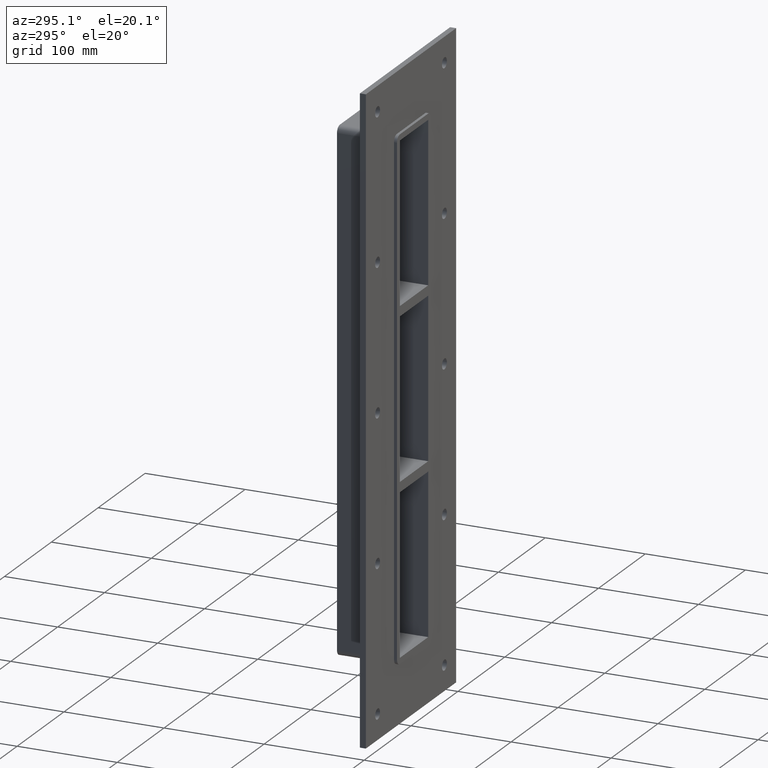
[diagram: clean part render]
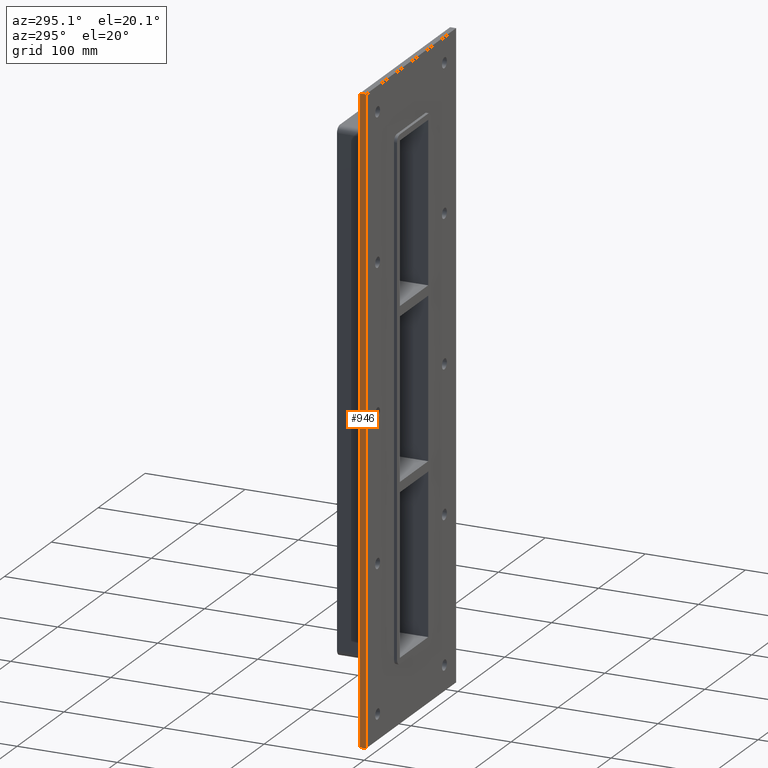
[diagram: same view with one face highlighted and labeled with its STEP entity id]
A machine part, auxiliary view. The second image highlights one B-rep face of the part: STEP entity #946.
In plain terms, the highlighted planar face has unit normal (-1, 0, 0).
Its self-contained STEP definition (entity closure, byte-faithful):
#650=CARTESIAN_POINT('',(-96.249999999999986,6.000000000000001,315.25));
#651=VERTEX_POINT('',#650);
#668=CARTESIAN_POINT('',(-96.249999999999986,6.000000000000001,-315.25000000000011));
#669=VERTEX_POINT('',#668);
#676=CARTESIAN_POINT('',(-96.249999999999986,6.000000000000001,-315.25000000000006));
#677=DIRECTION('',(0.0,0.0,1.0));
#678=VECTOR('',#677,630.50000000000011);
#679=LINE('',#676,#678);
#680=EDGE_CURVE('',#669,#651,#679,.T.);
#790=CARTESIAN_POINT('',(-96.249999999999986,0.0,315.25));
#791=VERTEX_POINT('',#790);
#800=CARTESIAN_POINT('',(-96.249999999999986,0.0,-315.25000000000006));
#801=VERTEX_POINT('',#800);
#802=CARTESIAN_POINT('',(-96.249999999999986,0.0,-315.25000000000006));
#803=DIRECTION('',(0.0,0.0,1.0));
#804=VECTOR('',#803,630.50000000000011);
#805=LINE('',#802,#804);
#806=EDGE_CURVE('',#801,#791,#805,.T.);
#925=CARTESIAN_POINT('',(-96.249999999999986,0.0,-315.25000000000006));
#926=DIRECTION('',(-1.0,0.0,0.0));
#927=DIRECTION('',(0.0,0.0,1.0));
#928=AXIS2_PLACEMENT_3D('',#925,#926,#927);
#929=PLANE('',#928);
#930=ORIENTED_EDGE('',*,*,#806,.T.);
#931=CARTESIAN_POINT('',(-96.249999999999986,0.0,315.25));
#932=DIRECTION('',(0.0,1.0,0.0));
#933=VECTOR('',#932,6.000000000000001);
#934=LINE('',#931,#933);
#935=EDGE_CURVE('',#791,#651,#934,.T.);
#936=ORIENTED_EDGE('',*,*,#935,.T.);
#937=ORIENTED_EDGE('',*,*,#680,.F.);
#938=CARTESIAN_POINT('',(-96.249999999999986,0.0,-315.25000000000006));
#939=DIRECTION('',(0.0,1.0,0.0));
#940=VECTOR('',#939,6.000000000000001);
#941=LINE('',#938,#940);
#942=EDGE_CURVE('',#801,#669,#941,.T.);
#943=ORIENTED_EDGE('',*,*,#942,.F.);
#944=EDGE_LOOP('',(#930,#936,#937,#943));
#945=FACE_OUTER_BOUND('',#944,.T.);
#946=ADVANCED_FACE('',(#945),#929,.T.);